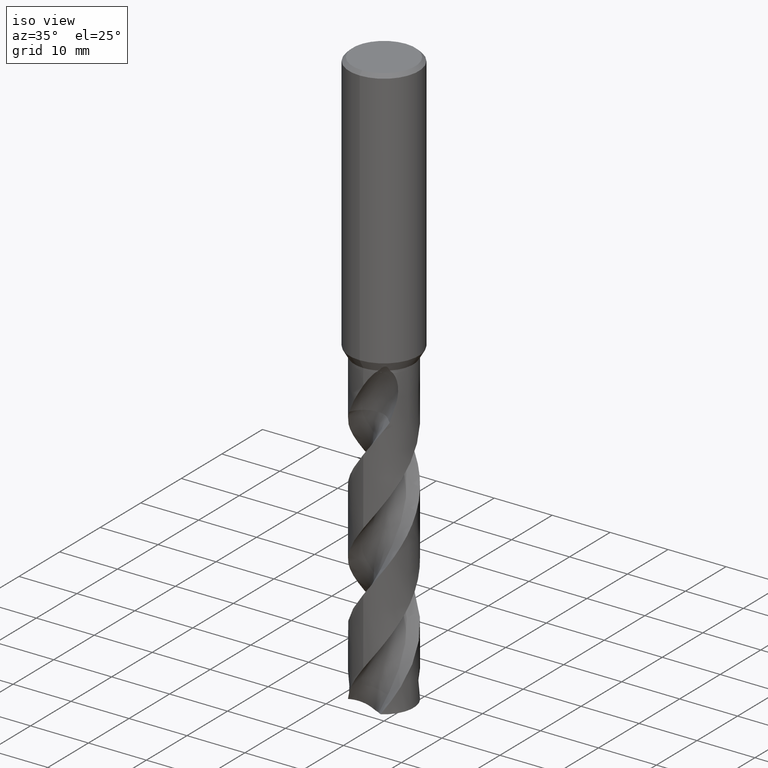
[diagram: clean part render]
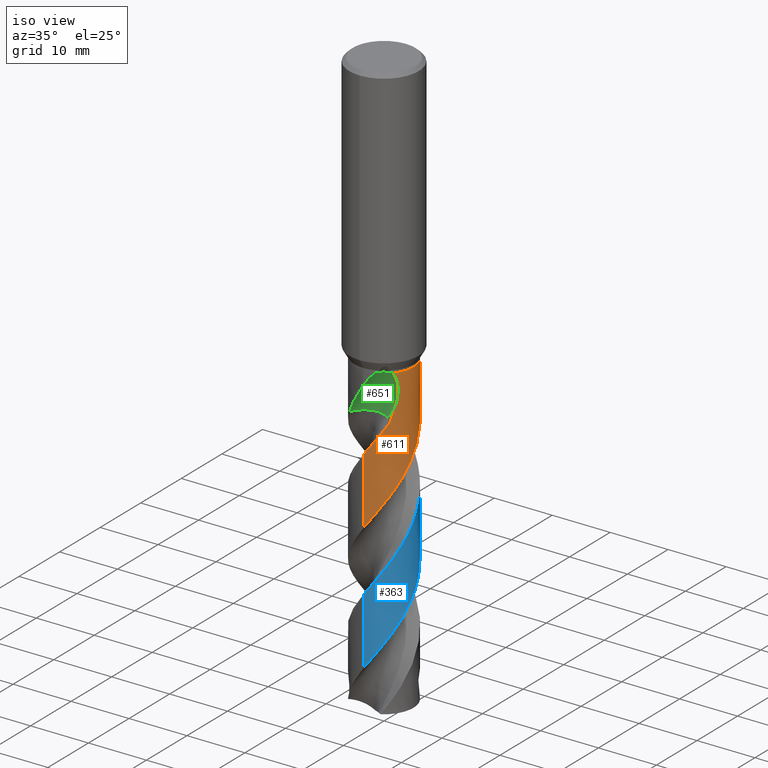
[diagram: same view with three faces highlighted in distinct colors, each labeled with its STEP entity id]
A machine part, iso view with three faces highlighted in distinct colors.
Their STEP definitions:

[orange] entity #611 — the highlighted conical surface has half-angle 0 deg.
#291=VERTEX_POINT('',#806);
#409=EDGE_CURVE('',#447,#733,#936,.T.);
#417=VERTEX_POINT('',#945);
#433=EDGE_CURVE('',#417,#473,#961,.T.);
#447=VERTEX_POINT('',#975);
#453=EDGE_CURVE('',#661,#565,#981,.T.);
#457=EDGE_CURVE('',#291,#661,#985,.T.);
#473=VERTEX_POINT('',#1003);
#493=EDGE_CURVE('',#417,#605,#1024,.T.);
#537=EDGE_CURVE('',#473,#291,#1072,.T.);
#565=VERTEX_POINT('',#1101);
#605=VERTEX_POINT('',#1145);
#611=ADVANCED_FACE('',(#1151),#1152,.T.);
#615=EDGE_CURVE('',#447,#565,#1156,.T.);
#661=VERTEX_POINT('',#1209);
#681=EDGE_CURVE('',#733,#605,#1231,.T.);
#733=VERTEX_POINT('',#1290);
#806=CARTESIAN_POINT('',(4.14948817813422,-2.96493210192964,-51.9236798045269));
#936=B_SPLINE_CURVE_WITH_KNOTS('',3,(#3297,#3298,#3299,#3300,#3301,#3302,#3303,#3304,#3305,#3306,#3307,#3308,#3309,#3310,#3311,#3312,#3313,#3314,#3315,#3316,#3317,#3318,#3319,#3320,#3321,#3322,#3323,#3324,#3325,#3326,#3327,#3328,#3329,#3330,#3331,#3332,#3333,#3334,#3335,#3336,#3337,#3338,#3339,#3340,#3341,#3342,#3343,#3344,#3345,#3346,#3347,#3348,#3349,#3350,#3351,#3352,#3353,#3354,#3355,#3356,#3357,#3358,#3359,#3360,#3361,#3362,#3363,#3364,#3365,#3366,#3367,#3368,#3369,#3370,#3371,#3372),.UNSPECIFIED.,.F.,.F.,(4,2,2,2,2,2,2,2,2,2,2,2,2,2,2,2,2,2,2,2,2,2,2,2,2,2,2,2,2,2,2,2,2,2,2,2,2,4),(0.0,2.2659182937515,4.75245531387169,5.3748516500906,8.0506284897172,9.19276919187222,12.0115479020644,13.1936776919368,15.7151134856049,16.3273034336714,18.9527638353742,21.2121991210266,23.2901118890067,23.6378338876585,26.1641420670405,27.5471307464008,30.3821290648293,31.4751814525203,34.3067888830194,35.0076361855475,37.8405188865984,38.9978491377905,40.5468056163044,41.2564744917496,42.313640971352,45.2837343647013,45.9897149979672,50.1686012888579,52.9904123525947,53.1700650287888,53.8436807658941,54.5831018689074,55.0248506861852,55.4934853003944,55.8849521085736,56.351828900714,57.2241566725933,59.1603088884066),.UNSPECIFIED.);
#945=CARTESIAN_POINT('',(-6.31360271403751E-016,5.0999,-47.0));
#961=CIRCLE('',#3511,5.0999);
#975=CARTESIAN_POINT('',(-4.00537581315732E-012,-5.09994624439276,-71.5760053127153));
#981=B_SPLINE_CURVE_WITH_KNOTS('',3,(#3783,#3784,#3785,#3786,#3787,#3788,#3789,#3790,#3791,#3792,#3793,#3794,#3795,#3796,#3797,#3798,#3799,#3800,#3801,#3802,#3803,#3804,#3805,#3806,#3807,#3808,#3809,#3810,#3811,#3812,#3813,#3814,#3815,#3816,#3817,#3818,#3819,#3820,#3821,#3822,#3823,#3824,#3825,#3826,#3827,#3828,#3829,#3830,#3831,#3832,#3833,#3834,#3835,#3836,#3837,#3838,#3839,#3840,#3841,#3842,#3843,#3844,#3845,#3846,#3847,#3848,#3849,#3850,#3851,#3852,#3853,#3854,#3855,#3856,#3857,#3858,#3859,#3860,#3861,#3862,#3863,#3864,#3865,#3866,#3867,#3868,#3869,#3870,#3871,#3872,#3873,#3874),.UNSPECIFIED.,.F.,.F.,(4,2,2,2,2,2,2,2,2,2,2,2,2,2,2,2,2,2,2,2,2,2,2,2,2,2,2,2,2,2,2,2,2,2,2,2,2,2,2,2,2,2,2,2,2,4),(0.0,0.22082402785822,0.366742601328672,0.519637852044823,1.02510263478225,1.2151682814487,1.34097674311764,1.46222188152734,1.62967037495746,1.81786979630084,1.83040576516735,2.51486615374321,2.95538347653831,3.38821230604994,3.84285838216551,5.07209421420267,6.2859535778628,8.00081098720895,10.8465937790254,11.1845590468723,12.9859172417455,15.8335697338612,18.2229667895168,18.6646038138347,20.4514708595499,23.2957169694726,25.5318611131493,25.9798471865577,27.7200175554721,30.567511120799,32.8493350048397,33.3034016768828,36.6889246840723,36.7954243586462,39.8640057025503,40.9398060508403,43.0401057963898,43.7440179144292,44.6946240081235,46.9389972404029,48.1097084278696,50.0187907029872,53.2114582337947,54.8089898868199,55.6105351541812,56.4125536006402),.UNSPECIFIED.);
#985=B_SPLINE_CURVE_WITH_KNOTS('',3,(#3881,#3882,#3883,#3884),.UNSPECIFIED.,.F.,.F.,(4,4),(0.0,2.93092913889182),.UNSPECIFIED.);
#1003=CARTESIAN_POINT('',(3.86434643755276,-3.32803344643248,-47.0));
#1024=LINE('',#4024,#4025);
#1072=B_SPLINE_CURVE_WITH_KNOTS('',3,(#4204,#4205,#4206,#4207,#4208,#4209,#4210,#4211,#4212,#4213),.UNSPECIFIED.,.F.,.F.,(4,2,2,2,4),(0.0,0.956613033133866,2.29409634646343,2.99939022102229,3.73564279157731),.UNSPECIFIED.);
#1101=CARTESIAN_POINT('',(6.91755758101175E-013,-5.09992459473952,-60.0705673244784));
#1145=CARTESIAN_POINT('',(-1.50822059244601E-012,5.09990431853075,-49.2950292607119));
#1151=FACE_OUTER_BOUND('',#4442,.T.);
#1152=CONICAL_SURFACE('',#4443,5.09995,1.88168875178633E-006);
#1156=LINE('',#4449,#4450);
#1209=CARTESIAN_POINT('',(3.54483399488666,-3.66650788281814,-54.7162));
#1231=B_SPLINE_CURVE_WITH_KNOTS('',3,(#4739,#4740,#4741,#4742,#4743,#4744,#4745,#4746,#4747,#4748,#4749,#4750,#4751,#4752),.UNSPECIFIED.,.F.,.F.,(4,2,2,2,2,2,4),(0.0,2.49872115833258,3.86307340073771,5.09882207220163,6.5344464686445,8.25894814408787,9.14539973170347),.UNSPECIFIED.);
#1290=CARTESIAN_POINT('',(3.24976651141065,3.93041292072291,-54.7162));
#3297=CARTESIAN_POINT('',(4.20163265179173,2.89072362210531,-100.143751805242));
#3298=CARTESIAN_POINT('',(3.94902573075824,3.25788277465556,-99.5339393736739));
#3299=CARTESIAN_POINT('',(3.64852755789272,3.59149373882036,-98.9244225806015));
#3300=CARTESIAN_POINT('',(2.9334930673307,4.20073081689364,-97.64729835411));
#3301=CARTESIAN_POINT('',(2.51608206940174,4.46302269706784,-96.9891642995706));
#3302=CARTESIAN_POINT('',(1.95704194696908,4.71114669856159,-96.151931823369));
#3303=CARTESIAN_POINT('',(1.84363074768749,4.75667169492251,-95.9838706976579));
#3304=CARTESIAN_POINT('',(1.23344196423027,4.97648381554069,-95.0955473189081));
#3305=CARTESIAN_POINT('',(0.713419821059293,5.07731121855019,-94.3881657299518));
#3306=CARTESIAN_POINT('',(-0.0386181567742661,5.10480749518826,-93.3624851050461));
#3307=CARTESIAN_POINT('',(-0.263403433796054,5.09812440041802,-93.0540809529159));
#3308=CARTESIAN_POINT('',(-1.03832877905273,5.02380704888565,-91.9903425695381));
#3309=CARTESIAN_POINT('',(-1.57710345166921,4.88149571805329,-91.2484423651491));
#3310=CARTESIAN_POINT('',(-2.29432757992744,4.5606757067121,-90.1747432469911));
#3311=CARTESIAN_POINT('',(-2.49980764268498,4.45140120076922,-89.8554986542758));
#3312=CARTESIAN_POINT('',(-3.11886650847182,4.06559677575408,-88.8607000973938));
#3313=CARTESIAN_POINT('',(-3.499236112779,3.74310224472208,-88.1943530662491));
#3314=CARTESIAN_POINT('',(-3.90643716109149,3.28085153629935,-87.3524036938161));
#3315=CARTESIAN_POINT('',(-3.98258275736734,3.18797459612671,-87.1874894338068));
#3316=CARTESIAN_POINT('',(-4.36736588062536,2.68339880478363,-86.3185729896093));
#3317=CARTESIAN_POINT('',(-4.61602857248328,2.22896791171575,-85.6262540376606));
#3318=CARTESIAN_POINT('',(-4.94436426038694,1.32671766670968,-84.318901738017));
#3319=CARTESIAN_POINT('',(-5.04114127762649,0.891285416729236,-83.7105359837499));
#3320=CARTESIAN_POINT('',(-5.11618026950976,0.0408034127511017,-82.5501239381891));
#3321=CARTESIAN_POINT('',(-5.1028887142046,-0.368455409023369,-81.9998499548103));
#3322=CARTESIAN_POINT('',(-5.03110469967854,-0.83801049480537,-81.3491802855775));
#3323=CARTESIAN_POINT('',(-5.01949044637446,-0.904980820476269,-81.2558366903674));
#3324=CARTESIAN_POINT('',(-4.91223650317283,-1.45750667118565,-80.4847011595226));
#3325=CARTESIAN_POINT('',(-4.74768377828999,-1.92763669747734,-79.8178206553223));
#3326=CARTESIAN_POINT('',(-4.39089842959843,-2.60835684062953,-78.7723402392275));
#3327=CARTESIAN_POINT('',(-4.24586969644453,-2.8381779416644,-78.4005221910267));
#3328=CARTESIAN_POINT('',(-3.75203048266137,-3.49841716249829,-77.2729161074051));
#3329=CARTESIAN_POINT('',(-3.35012832383167,-3.88502306744454,-76.5302785191477));
#3330=CARTESIAN_POINT('',(-2.71774441448674,-4.32077088010093,-75.4816332046191));
#3331=CARTESIAN_POINT('',(-2.53460527375539,-4.43068839033217,-75.1884231313961));
#3332=CARTESIAN_POINT('',(-1.85294906361646,-4.78359569897436,-74.1404111348516));
#3333=CARTESIAN_POINT('',(-1.3236341594009,-4.95609344505658,-73.3993754347419));
#3334=CARTESIAN_POINT('',(-0.642300352504602,-5.06118827557465,-72.455944516128));
#3335=CARTESIAN_POINT('',(-0.506453761667219,-5.07658970697857,-72.2682187085541));
#3336=CARTESIAN_POINT('',(0.182943306980712,-5.12669822153022,-71.3232176836819));
#3337=CARTESIAN_POINT('',(0.738197648170805,-5.0765530168807,-70.5808189748717));
#3338=CARTESIAN_POINT('',(1.49373449728963,-4.88153562684583,-69.5148868957905));
#3339=CARTESIAN_POINT('',(1.70896384621616,-4.81043478259578,-69.2039005024451));
#3340=CARTESIAN_POINT('',(2.20030904389421,-4.61087467471652,-68.4804840568033));
#3341=CARTESIAN_POINT('',(2.47110678147556,-4.47164694376927,-68.0691386686152));
#3342=CARTESIAN_POINT('',(2.84602047578238,-4.23426264977135,-67.4664030980578));
#3343=CARTESIAN_POINT('',(2.96057595307478,-4.154962020033,-67.2771674823594));
#3344=CARTESIAN_POINT('',(3.2370392159696,-3.9463751788018,-66.805081844377));
#3345=CARTESIAN_POINT('',(3.39429397239863,-3.81190845645427,-66.5212192443903));
#3346=CARTESIAN_POINT('',(3.95938749429517,-3.26622523698176,-65.4460881168611));
#3347=CARTESIAN_POINT('',(4.3046080709117,-2.79571526442765,-64.6702787971425));
#3348=CARTESIAN_POINT('',(4.6250599107829,-2.15339850465486,-63.6909053874304));
#3349=CARTESIAN_POINT('',(4.68146920675425,-2.02782437002429,-63.5022967652639));
#3350=CARTESIAN_POINT('',(5.03615411743812,-1.14439833047024,-62.2013281968214));
#3351=CARTESIAN_POINT('',(5.15455294521646,-0.32549740910339,-61.1082827952683));
#3352=CARTESIAN_POINT('',(5.02400472889591,1.03552807950939,-59.2462388978145));
#3353=CARTESIAN_POINT('',(4.88246903167541,1.57781612948606,-58.475755101576));
#3354=CARTESIAN_POINT('',(4.63602441696222,2.12550108241176,-57.6813557804776));
#3355=CARTESIAN_POINT('',(4.62120907965544,2.15753111051058,-57.6348489595028));
#3356=CARTESIAN_POINT('',(4.54682023135637,2.31393609483181,-57.4053239112771));
#3357=CARTESIAN_POINT('',(4.48392631597266,2.43336282846503,-57.2240568969636));
#3358=CARTESIAN_POINT('',(4.34456891073445,2.67491778743777,-56.8384374460681));
#3359=CARTESIAN_POINT('',(4.26812728607562,2.79487914519493,-56.6355977998295));
#3360=CARTESIAN_POINT('',(4.14224287698357,2.97620528129077,-56.3046187507262));
#3361=CARTESIAN_POINT('',(4.10898713181421,3.02104949025919,-56.2168157989445));
#3362=CARTESIAN_POINT('',(4.06355335732812,3.08191783173938,-56.1000897947353));
#3363=CARTESIAN_POINT('',(4.03935520272679,3.11358685982075,-56.040625768353));
#3364=CARTESIAN_POINT('',(3.99323117831625,3.17244614924502,-55.9323936095053));
#3365=CARTESIAN_POINT('',(3.97162862034546,3.19946174399677,-55.8835743391281));
#3366=CARTESIAN_POINT('',(3.92280018506146,3.25922525695577,-55.7773780842053));
#3367=CARTESIAN_POINT('',(3.89534166978667,3.29201505340315,-55.7202708134894));
#3368=CARTESIAN_POINT('',(3.81376922654446,3.38687911099502,-55.5581194381631));
#3369=CARTESIAN_POINT('',(3.75745111862449,3.44938670569744,-55.4549814250876));
#3370=CARTESIAN_POINT('',(3.56458688078228,3.65241359686789,-55.1294365223203));
#3371=CARTESIAN_POINT('',(3.41603735137069,3.79293640698324,-54.9185276917459));
#3372=CARTESIAN_POINT('',(3.24976651141065,3.93041292072291,-54.7162));
#3511=AXIS2_PLACEMENT_3D('',#5488,#5489,#5490);
#3783=CARTESIAN_POINT('',(3.54483399488667,-3.66650788281814,-54.7162));
#3784=CARTESIAN_POINT('',(3.51492533426622,-3.6954241767514,-54.7769244513859));
#3785=CARTESIAN_POINT('',(3.4845799002416,-3.72405618101534,-54.8375821625741));
#3786=CARTESIAN_POINT('',(3.43329860129553,-3.7712547049605,-54.938177951918));
#3787=CARTESIAN_POINT('',(3.41269053106124,-3.78991512335172,-54.9781117520438));
#3788=CARTESIAN_POINT('',(3.36997618180811,-3.82795660785222,-55.0598033292017));
#3789=CARTESIAN_POINT('',(3.34788769672817,-3.84729186287019,-55.1014761624427));
#3790=CARTESIAN_POINT('',(3.2515295078198,-3.93016749254595,-55.2807180358993));
#3791=CARTESIAN_POINT('',(3.17569796849079,-3.9917528920058,-55.4153248073159));
#3792=CARTESIAN_POINT('',(3.06631758057516,-4.07532287497266,-55.6015377705761));
#3793=CARTESIAN_POINT('',(3.03609048636148,-4.09789410866181,-55.6522264851778));
#3794=CARTESIAN_POINT('',(2.98521972985275,-4.13500178950696,-55.7364248432783));
#3795=CARTESIAN_POINT('',(2.96481959237899,-4.14965376119839,-55.7699018490594));
#3796=CARTESIAN_POINT('',(2.9244712543898,-4.17818209193084,-55.835621425538));
#3797=CARTESIAN_POINT('',(2.90455226612263,-4.1920540053856,-55.8678341910824));
#3798=CARTESIAN_POINT('',(2.85683826708099,-4.22477845389328,-55.9445350897757));
#3799=CARTESIAN_POINT('',(2.82897048830673,-4.24348976331606,-55.9889649662494));
#3800=CARTESIAN_POINT('',(2.76938832392624,-4.2826470920751,-56.0834089064715));
#3801=CARTESIAN_POINT('',(2.73767817970695,-4.30298593101078,-56.1333488283473));
#3802=CARTESIAN_POINT('',(2.70367557433654,-4.32426883927627,-56.1867346095765));
#3803=CARTESIAN_POINT('',(2.7015657322926,-4.32558727877578,-56.190046632859));
#3804=CARTESIAN_POINT('',(2.58298823065443,-4.39956460512413,-56.3761857668626));
#3805=CARTESIAN_POINT('',(2.46452080271372,-4.46693672490528,-56.561477953033));
#3806=CARTESIAN_POINT('',(2.26748572479871,-4.56894146692081,-56.865219431682));
#3807=CARTESIAN_POINT('',(2.18940313148241,-4.60686479957766,-56.9845016590216));
#3808=CARTESIAN_POINT('',(2.0329164560707,-4.67800004717565,-57.2206912373843));
#3809=CARTESIAN_POINT('',(1.95438458329192,-4.71135408251928,-57.3378427288637));
#3810=CARTESIAN_POINT('',(1.79148936571227,-4.77575136621021,-57.5775785787686));
#3811=CARTESIAN_POINT('',(1.70747977829738,-4.80642882392459,-57.6993169062508));
#3812=CARTESIAN_POINT('',(1.39224514017974,-4.91220581894484,-58.1514955849901));
#3813=CARTESIAN_POINT('',(1.1569614193407,-4.97287708774679,-58.4799844828475));
#3814=CARTESIAN_POINT('',(0.682632285639242,-5.05970636710842,-59.1362348757954));
#3815=CARTESIAN_POINT('',(0.444571249921775,-5.08612434503415,-59.4632586020475));
#3816=CARTESIAN_POINT('',(-0.131421230992353,-5.10939273180395,-60.250467147338));
#3817=CARTESIAN_POINT('',(-0.469385835797548,-5.08951808567232,-60.7085898942239));
#3818=CARTESIAN_POINT('',(-1.35719180189964,-4.9479285052593,-61.933062885012));
#3819=CARTESIAN_POINT('',(-1.89279593728081,-4.76877995448596,-62.6932515508236));
#3820=CARTESIAN_POINT('',(-2.44728242474447,-4.47487924548683,-63.5480718219834));
#3821=CARTESIAN_POINT('',(-2.50550827589929,-4.44254014216164,-63.638772383608));
#3822=CARTESIAN_POINT('',(-2.86996684859121,-4.23067400552803,-64.2133994826588));
#3823=CARTESIAN_POINT('',(-3.15746802583165,-4.0206721183433,-64.6969974916377));
#3824=CARTESIAN_POINT('',(-3.837162146945,-3.40597006275892,-65.9457832407978));
#3825=CARTESIAN_POINT('',(-4.18830132045087,-2.96344328325981,-66.7039431746317));
#3826=CARTESIAN_POINT('',(-4.68841832265861,-2.06144276053782,-68.1113942027327));
#3827=CARTESIAN_POINT('',(-4.85870523499638,-1.62001468005438,-68.7494307972835));
#3828=CARTESIAN_POINT('',(-4.98582909174566,-1.07633950791332,-69.50954670241));
#3829=CARTESIAN_POINT('',(-5.00347392005237,-0.991078809526539,-69.62809551533));
#3830=CARTESIAN_POINT('',(-5.08144112288314,-0.558902858053204,-70.2267847914549));
#3831=CARTESIAN_POINT('',(-5.10791502607372,-0.206722682405034,-70.7065480612008));
#3832=CARTESIAN_POINT('',(-5.08188664842853,0.705905846368512,-71.9506887326361));
#3833=CARTESIAN_POINT('',(-4.973569544721,1.25975542630322,-72.7083751831679));
#3834=CARTESIAN_POINT('',(-4.62338100028732,2.19724257350912,-74.0737831396042));
#3835=CARTESIAN_POINT('',(-4.41633963061922,2.58843400526252,-74.671281491314));
#3836=CARTESIAN_POINT('',(-4.11027703042872,3.02042305854668,-75.3920480171081));
#3837=CARTESIAN_POINT('',(-4.05735669390024,3.09114544574352,-75.5123035180685));
#3838=CARTESIAN_POINT('',(-3.79009448450189,3.4296295043456,-76.1002453683056));
#3839=CARTESIAN_POINT('',(-3.5508787928307,3.6767535883773,-76.5676418387987));
#3840=CARTESIAN_POINT('',(-2.8595585337532,4.26000854484495,-77.8003795929029));
#3841=CARTESIAN_POINT('',(-2.37375767697457,4.54857859305012,-78.558737098844));
#3842=CARTESIAN_POINT('',(-1.43213581892212,4.91535241165453,-79.9375409301634));
#3843=CARTESIAN_POINT('',(-0.993233813087876,5.02252427613478,-80.5473273360303));
#3844=CARTESIAN_POINT('',(-0.456599403015162,5.08027352877978,-81.2821109404341));
#3845=CARTESIAN_POINT('',(-0.367344360683626,5.0875054360707,-81.4040086363231));
#3846=CARTESIAN_POINT('',(0.388478207430761,5.12876300632644,-82.4358521771697));
#3847=CARTESIAN_POINT('',(1.05612962351583,5.03393524125581,-83.3381235876571));
#3848=CARTESIAN_POINT('',(1.70638628164751,4.80607770353604,-84.2763378775172));
#3849=CARTESIAN_POINT('',(1.72616998206657,4.79900767382752,-84.3049479626311));
#3850=CARTESIAN_POINT('',(2.31472038735596,4.58456937426615,-85.1582384638583));
#3851=CARTESIAN_POINT('',(2.84255823774471,4.27746676212991,-85.9793755628883));
#3852=CARTESIAN_POINT('',(3.4659300708769,3.7472926808958,-87.0932833622439));
#3853=CARTESIAN_POINT('',(3.61886842476091,3.59979946059456,-87.3820007032516));
#3854=CARTESIAN_POINT('',(4.04175479514962,3.13776125139833,-88.2363995391575));
#3855=CARTESIAN_POINT('',(4.28334069293777,2.79906733943415,-88.7999801009879));
#3856=CARTESIAN_POINT('',(4.54768313161023,2.31250838832456,-89.5539189784984));
#3857=CARTESIAN_POINT('',(4.60902244707034,2.18770170237364,-89.743025292661));
#3858=CARTESIAN_POINT('',(4.74104287977803,1.88880055778054,-90.187815997139));
#3859=CARTESIAN_POINT('',(4.80729555155234,1.71314581782827,-90.4432106620483));
#3860=CARTESIAN_POINT('',(4.99686285393043,1.11225075851984,-91.302857835853));
#3861=CARTESIAN_POINT('',(5.07461295412415,0.674259898385694,-91.9046591441237));
#3862=CARTESIAN_POINT('',(5.10522471887703,0.000478399569474847,-92.8229026873463));
#3863=CARTESIAN_POINT('',(5.09999565033292,-0.230811494304414,-93.1369449523894));
#3864=CARTESIAN_POINT('',(5.04507999672973,-0.836035019957271,-93.965587441613));
#3865=CARTESIAN_POINT('',(4.96955517390479,-1.20647038292756,-94.4785292324855));
#3866=CARTESIAN_POINT('',(4.66030620300535,-2.1654211063936,-95.8507955468777));
#3867=CARTESIAN_POINT('',(4.3572256279583,-2.72419440945799,-96.7027351494243));
#3868=CARTESIAN_POINT('',(3.76180904208304,-3.45804560915037,-97.9920005224473));
#3869=CARTESIAN_POINT('',(3.54084088053239,-3.68402386974543,-98.4205395963364));
#3870=CARTESIAN_POINT('',(3.17947182715234,-3.99074136009653,-99.065684627592));
#3871=CARTESIAN_POINT('',(3.05404928068615,-4.08752104768689,-99.2811321727547));
#3872=CARTESIAN_POINT('',(2.79457555682673,-4.26912528017815,-99.7124330432565));
#3873=CARTESIAN_POINT('',(2.66064028112371,-4.35385801980733,-99.9280352812336));
#3874=CARTESIAN_POINT('',(2.52298112860558,-4.43221910838127,-100.143751805242));
#3881=CARTESIAN_POINT('',(4.14948817818684,-2.964932101856,-51.9236798045559));
#3882=CARTESIAN_POINT('',(3.98507442511856,-3.19503581936171,-52.8588285859528));
#3883=CARTESIAN_POINT('',(3.78691296481268,-3.43245995870815,-53.7995418619512));
#3884=CARTESIAN_POINT('',(3.54483399488666,-3.66650788281815,-54.7162));
#4024=CARTESIAN_POINT('',(-6.3136639443552E-016,5.09995,-73.5718759026212));
#4025=VECTOR('',#5528,1.0);
#4204=CARTESIAN_POINT('',(3.86434643755276,-3.32803344643249,-47.0));
#4205=CARTESIAN_POINT('',(3.99035627151438,-3.181717844244,-47.2537557644386));
#4206=CARTESIAN_POINT('',(4.0896527958812,-3.04963820249648,-47.5691350157602));
#4207=CARTESIAN_POINT('',(4.26784836530952,-2.7976514970042,-48.4373537955779));
#4208=CARTESIAN_POINT('',(4.32692432977883,-2.69940573817909,-49.0510601715517));
#4209=CARTESIAN_POINT('',(4.33240437159778,-2.69059931547266,-50.0991112318));
#4210=CARTESIAN_POINT('',(4.31857142792948,-2.71327046204746,-50.4610470489588));
#4211=CARTESIAN_POINT('',(4.25956749588456,-2.80504014511745,-51.1934643086016));
#4212=CARTESIAN_POINT('',(4.21317925601455,-2.87579385458063,-51.5614249426823));
#4213=CARTESIAN_POINT('',(4.14948817813421,-2.96493210192964,-51.9236798045269));
#4442=EDGE_LOOP('',(#5654,#5655,#5656,#5657,#5658,#5659,#5660,#5661));
#4443=AXIS2_PLACEMENT_3D('',#5662,#5663,#5664);
#4449=CARTESIAN_POINT('',(6.17719840399767E-016,-5.09995,-73.5718759026212));
#4450=VECTOR('',#5668,1.0);
#4739=CARTESIAN_POINT('',(3.24976651141065,3.93041292072291,-54.7162));
#4740=CARTESIAN_POINT('',(2.91335754670991,4.20856277477289,-54.0068370282236));
#4741=CARTESIAN_POINT('',(2.52656084275386,4.45582076374709,-53.3454817741846));
#4742=CARTESIAN_POINT('',(1.85210085701279,4.75888653671199,-52.2406486507469));
#4743=CARTESIAN_POINT('',(1.60939851596232,4.84606701674677,-51.8519328156349));
#4744=CARTESIAN_POINT('',(1.13955848368549,4.97636041394906,-51.0994845990313));
#4745=CARTESIAN_POINT('',(0.914518422784485,5.02239262849197,-50.7392588890588));
#4746=CARTESIAN_POINT('',(0.427403815596067,5.08882762791527,-49.9628833852051));
#4747=CARTESIAN_POINT('',(0.161259963986772,5.10442457564482,-49.5406562203466));
#4748=CARTESIAN_POINT('',(-0.429776382696007,5.09199144791901,-48.6373771091695));
#4749=CARTESIAN_POINT('',(-0.780200371234543,5.053538535443,-48.1234042208602));
#4750=CARTESIAN_POINT('',(-1.32827713525057,4.92758786750428,-47.4360199193473));
#4751=CARTESIAN_POINT('',(-1.52883937982554,4.8704006693747,-47.2043644475746));
#4752=CARTESIAN_POINT('',(-1.73731639661872,4.79486305831978,-47.0));
#5488=CARTESIAN_POINT('',(0.0,0.0,-47.0));
#5489=DIRECTION('',(0.0,0.0,-1.0));
#5490=DIRECTION('',(0.0,1.0,0.0));
#5528=DIRECTION('',(-2.30432800135228E-022,1.88168875178522E-006,-0.99999999999823));
#5654=ORIENTED_EDGE('',*,*,#493,.F.);
#5655=ORIENTED_EDGE('',*,*,#433,.T.);
#5656=ORIENTED_EDGE('',*,*,#537,.T.);
#5657=ORIENTED_EDGE('',*,*,#457,.T.);
#5658=ORIENTED_EDGE('',*,*,#453,.T.);
#5659=ORIENTED_EDGE('',*,*,#615,.F.);
#5660=ORIENTED_EDGE('',*,*,#409,.T.);
#5661=ORIENTED_EDGE('',*,*,#681,.T.);
#5662=CARTESIAN_POINT('',(0.0,0.0,-73.5718759026212));
#5663=DIRECTION('',(0.0,-0.0,-1.0));
#5664=DIRECTION('',(0.0,1.0,0.0));
#5668=DIRECTION('',(-2.30432800135228E-022,1.88168875178522E-006,0.99999999999823));

[blue] entity #363 — the highlighted conical surface has half-angle 0 deg.
#363=ADVANCED_FACE('',(#886),#887,.T.);
#393=EDGE_CURVE('',#435,#551,#919,.T.);
#435=VERTEX_POINT('',#963);
#487=EDGE_CURVE('',#435,#739,#1018,.T.);
#551=VERTEX_POINT('',#1087);
#695=VERTEX_POINT('',#1248);
#739=VERTEX_POINT('',#1296);
#751=EDGE_CURVE('',#695,#739,#1310,.T.);
#771=EDGE_CURVE('',#695,#551,#1332,.T.);
#886=FACE_OUTER_BOUND('',#3034,.T.);
#887=CONICAL_SURFACE('',#3035,5.09995,1.88168875178633E-006);
#919=B_SPLINE_CURVE_WITH_KNOTS('',3,(#3120,#3121,#3122,#3123,#3124,#3125,#3126,#3127,#3128,#3129,#3130,#3131,#3132,#3133,#3134,#3135,#3136,#3137,#3138,#3139,#3140,#3141,#3142,#3143,#3144,#3145,#3146,#3147,#3148,#3149,#3150,#3151,#3152,#3153,#3154,#3155,#3156,#3157,#3158,#3159,#3160,#3161,#3162,#3163,#3164,#3165,#3166,#3167,#3168,#3169,#3170,#3171,#3172,#3173,#3174,#3175,#3176,#3177,#3178,#3179,#3180,#3181,#3182,#3183,#3184,#3185,#3186,#3187,#3188,#3189,#3190,#3191,#3192,#3193,#3194,#3195,#3196,#3197),.UNSPECIFIED.,.F.,.F.,(4,2,2,2,2,2,2,2,2,2,2,2,2,2,2,2,2,2,2,2,2,2,2,2,2,2,2,2,2,2,2,2,2,2,2,2,2,2,4),(0.0,2.26591834238043,4.75245560777625,5.37485233014804,8.0506303341988,9.19278370230962,12.0115618256693,13.1937105294441,15.7156891345217,16.3283264190488,18.9554236594136,21.2100177283507,23.2909805826317,23.6385445369638,26.165923040927,27.543861704137,30.378805607455,31.4620597053915,34.2939686486579,34.9794848804535,37.8144065928469,38.9446296965847,41.7731624896859,42.1235409111548,44.5287580583477,45.2655472885215,45.9719978200671,50.4329579470356,51.9267864510947,53.0302101485412,53.2156108229133,53.9011258477095,54.6508997926238,55.1148626765171,55.6688525888441,56.1279843150173,56.671307147104,57.6738302912634,59.979403547771),.UNSPECIFIED.);
#963=CARTESIAN_POINT('',(-1.41528039503262E-011,-5.09998733846747,-93.4149383870123));
#1018=LINE('',#4016,#4017);
#1087=CARTESIAN_POINT('',(4.34199891633546E-012,5.09994624439276,-71.5760053127162));
#1248=CARTESIAN_POINT('',(-6.75765064434781E-013,5.09992459473952,-60.0705673244784));
#1296=CARTESIAN_POINT('',(1.36738259375526E-011,-5.09996568097991,-81.9053369442979));
#1310=B_SPLINE_CURVE_WITH_KNOTS('',3,(#5145,#5146,#5147,#5148,#5149,#5150,#5151,#5152,#5153,#5154,#5155,#5156,#5157,#5158,#5159,#5160,#5161,#5162,#5163,#5164,#5165,#5166,#5167,#5168,#5169,#5170,#5171,#5172,#5173,#5174,#5175,#5176,#5177,#5178,#5179,#5180,#5181,#5182,#5183,#5184,#5185,#5186,#5187,#5188,#5189,#5190,#5191,#5192,#5193,#5194,#5195,#5196,#5197,#5198,#5199,#5200,#5201,#5202,#5203,#5204,#5205,#5206,#5207,#5208,#5209,#5210,#5211,#5212,#5213,#5214,#5215,#5216,#5217,#5218,#5219,#5220,#5221,#5222,#5223,#5224,#5225,#5226,#5227,#5228,#5229,#5230,#5231,#5232,#5233,#5234,#5235,#5236),.UNSPECIFIED.,.F.,.F.,(4,2,2,2,2,2,2,2,2,2,2,2,2,2,2,2,2,2,2,2,2,2,2,2,2,2,2,2,2,2,2,2,2,2,2,2,2,2,2,2,2,2,2,2,2,4),(0.0,0.220824028284294,0.366742602779952,0.519637850488109,1.02510263435499,1.21516828114332,1.34097674291307,1.46222188128358,1.62967037459784,1.81786979584962,1.83040576460696,2.51486614759537,2.95538346659302,3.38821229229305,3.84285836349934,5.07209418482097,6.28595354020275,8.00081109497665,10.8465938630064,11.1845590854789,12.9859174281503,15.8335698837423,18.2229670668505,18.6646040093334,20.4514714111342,23.2957174612667,25.5318607486522,25.9798468533267,27.7200170695083,30.5675106217468,32.8493351331347,33.3034017159986,36.6889254168788,36.7954250473692,39.8640078860854,40.9398066054374,43.0401077391979,43.7440198305365,44.6946248885504,46.9390002699236,48.109710903742,50.018796850847,53.2114609109645,54.8089911098023,55.6105356320385,56.4125533420112),.UNSPECIFIED.);
#1332=LINE('',#5312,#5313);
#3034=EDGE_LOOP('',(#5437,#5438,#5439,#5440));
#3035=AXIS2_PLACEMENT_3D('',#5441,#5442,#5443);
#3120=CARTESIAN_POINT('',(-4.20163265179173,-2.89072362210532,-100.143751805242));
#3121=CARTESIAN_POINT('',(-3.94902572533704,-3.25788278253518,-99.5339393605867));
#3122=CARTESIAN_POINT('',(-3.64852754501558,-3.59149375311011,-98.9244225545155));
#3123=CARTESIAN_POINT('',(-2.93349300667749,-4.20073086493157,-97.6472982491638));
#3124=CARTESIAN_POINT('',(-2.51608196231804,-4.46302276260509,-96.9891641315868));
#3125=CARTESIAN_POINT('',(-1.95704171925714,-4.71114679512125,-96.1519314842473));
#3126=CARTESIAN_POINT('',(-1.84363044657695,-4.75667181363584,-95.9838702535773));
#3127=CARTESIAN_POINT('',(-1.2334413485954,-4.97648399328102,-95.0955464472417));
#3128=CARTESIAN_POINT('',(-0.713418955830856,-5.07731136417735,-94.3881645540973));
#3129=CARTESIAN_POINT('',(0.0386217551249576,-5.10480757809472,-93.3624801955763));
#3130=CARTESIAN_POINT('',(0.263409528476437,-5.09812419676162,-93.0540726023764));
#3131=CARTESIAN_POINT('',(1.03833724033697,-5.02380529750867,-91.990330916212));
#3132=CARTESIAN_POINT('',(1.57711161140702,-4.88149306948697,-91.248430817337));
#3133=CARTESIAN_POINT('',(2.29433850403111,-4.56067040031449,-90.1747266134477));
#3134=CARTESIAN_POINT('',(2.49982167689347,-4.45139352046916,-89.8554767992777));
#3135=CARTESIAN_POINT('',(3.11897325361795,-4.0655279767027,-88.8605270752134));
#3136=CARTESIAN_POINT('',(3.49941357979301,-3.74295023543946,-88.1940407664006));
#3137=CARTESIAN_POINT('',(3.90671137817522,-3.28052821459846,-87.3518234126544));
#3138=CARTESIAN_POINT('',(3.98290391942249,-3.18757674470061,-87.1867881655177));
#3139=CARTESIAN_POINT('',(4.36788395432929,-2.68261923300909,-86.3172999312178));
#3140=CARTESIAN_POINT('',(4.61660861822341,-2.22784144479321,-85.6245549852903));
#3141=CARTESIAN_POINT('',(4.94445105363377,-1.32607664476554,-84.3180304322552));
#3142=CARTESIAN_POINT('',(5.04100663202076,-0.891575898671172,-83.7109498019114));
#3143=CARTESIAN_POINT('',(5.11622371898019,-0.0414480505669255,-82.5509874065057));
#3144=CARTESIAN_POINT('',(5.10293915529296,0.368423673388999,-81.9999096740392));
#3145=CARTESIAN_POINT('',(5.03101645832871,0.838537652437403,-81.348447153096));
#3146=CARTESIAN_POINT('',(5.01940034313806,0.905478457643178,-81.2551432198687));
#3147=CARTESIAN_POINT('',(4.91205294731032,1.45820795083772,-80.4837146806834));
#3148=CARTESIAN_POINT('',(4.7473410849553,1.92854206217835,-79.8165206947947));
#3149=CARTESIAN_POINT('',(4.39073850428466,2.6085243605728,-78.7720334232022));
#3150=CARTESIAN_POINT('',(4.24624417280758,2.83752459932107,-78.4015530945609));
#3151=CARTESIAN_POINT('',(3.75321003234474,3.49715280268715,-77.2752493666781));
#3152=CARTESIAN_POINT('',(3.35142823086969,3.88390516906029,-76.532586024082));
#3153=CARTESIAN_POINT('',(2.72073452510562,4.31879496255536,-75.4865337889946));
#3154=CARTESIAN_POINT('',(2.53933683163808,4.42788529105525,-75.1959470070074));
#3155=CARTESIAN_POINT('',(1.85990598126542,4.78089602998139,-74.1504707097097));
#3156=CARTESIAN_POINT('',(1.33080356254379,4.95418257448639,-73.4093670477681));
#3157=CARTESIAN_POINT('',(0.652487609443686,5.05980521637121,-72.4700355941722));
#3158=CARTESIAN_POINT('',(0.519686500674695,5.07516989866271,-72.2864463430142));
#3159=CARTESIAN_POINT('',(-0.166532690125561,5.12726394620648,-71.3453722187739));
#3160=CARTESIAN_POINT('',(-0.722077835894489,5.07889488245205,-70.6027446700811));
#3161=CARTESIAN_POINT('',(-1.47322817590733,4.88751769258836,-69.5441270587613));
#3162=CARTESIAN_POINT('',(-1.68333279303794,4.81920480952527,-69.2409278336692));
#3163=CARTESIAN_POINT('',(-2.40307652878224,4.53223046738,-68.183550651657));
#3164=CARTESIAN_POINT('',(-2.87960765257456,4.24521546172928,-67.4431819241968));
#3165=CARTESIAN_POINT('',(-3.3525007234666,3.84379620102487,-66.5934768986168));
#3166=CARTESIAN_POINT('',(-3.40360715918659,3.79861431959149,-66.499758501317));
#3167=CARTESIAN_POINT('',(-3.79854476687139,3.43509904286943,-65.7638594587731));
#3168=CARTESIAN_POINT('',(-4.09872079002442,3.07110899416984,-65.1306582520719));
#3169=CARTESIAN_POINT('',(-4.42085052077321,2.54680480758957,-64.2948906637313));
#3170=CARTESIAN_POINT('',(-4.49103179797305,2.42087755443375,-64.0990464922585));
#3171=CARTESIAN_POINT('',(-4.61772714447269,2.16908580492785,-63.7145687353633));
#3172=CARTESIAN_POINT('',(-4.67460136296895,2.04360899597501,-63.5258460036861));
#3173=CARTESIAN_POINT('',(-5.0527900623559,1.11073878985949,-62.1499695789784));
#3174=CARTESIAN_POINT('',(-5.16817363352731,0.234497435838765,-60.9886919908196));
#3175=CARTESIAN_POINT('',(-5.02522153022204,-0.917122925147589,-59.406040480063));
#3176=CARTESIAN_POINT('',(-4.96498394206944,-1.20105291824848,-59.0054462907189));
#3177=CARTESIAN_POINT('',(-4.81850802548581,-1.68440436137468,-58.3174987282625));
#3178=CARTESIAN_POINT('',(-4.74284657945017,-1.88743170908291,-58.0265955593694));
#3179=CARTESIAN_POINT('',(-4.63834742732702,-2.12044047138486,-57.6887069478108));
#3180=CARTESIAN_POINT('',(-4.62312345550495,-2.15343545301084,-57.6408262008076));
#3181=CARTESIAN_POINT('',(-4.54855286307285,-2.31053742853706,-57.4104261358652));
#3182=CARTESIAN_POINT('',(-4.48567218290093,-2.43015223629582,-57.2290157996526));
#3183=CARTESIAN_POINT('',(-4.34656584123468,-2.67165310359197,-56.8438268044763));
#3184=CARTESIAN_POINT('',(-4.27038321151459,-2.79141771096182,-56.6415695982086));
#3185=CARTESIAN_POINT('',(-4.14322134624756,-2.97492165086389,-56.3071673619567));
#3186=CARTESIAN_POINT('',(-4.10849178625974,-3.02167822529162,-56.2156688584818));
#3187=CARTESIAN_POINT('',(-4.06525407222417,-3.07967759460716,-56.1043214342863));
#3188=CARTESIAN_POINT('',(-4.04090191290617,-3.11158313958714,-56.0443567908729));
#3189=CARTESIAN_POINT('',(-3.99463429148146,-3.17067899314773,-55.9356068033497));
#3190=CARTESIAN_POINT('',(-3.97305733659988,-3.19768718005604,-55.8867642548694));
#3191=CARTESIAN_POINT('',(-3.92449165341427,-3.25718383215582,-55.780964771009));
#3192=CARTESIAN_POINT('',(-3.89728426343374,-3.28971011462722,-55.7242672914885));
#3193=CARTESIAN_POINT('',(-3.81713256269147,-3.38304736263301,-55.5645706181588));
#3194=CARTESIAN_POINT('',(-3.76209411092742,-3.44427438500448,-55.4633820079205));
#3195=CARTESIAN_POINT('',(-3.56912862723457,-3.64811268732069,-55.1358985076593));
#3196=CARTESIAN_POINT('',(-3.41859396582541,-3.79082253997989,-54.921638723731));
#3197=CARTESIAN_POINT('',(-3.24976651141065,-3.93041292072291,-54.7162));
#4016=CARTESIAN_POINT('',(6.38330618019034E-016,-5.09995,-73.5718759026212));
#4017=VECTOR('',#5527,1.0);
#5145=CARTESIAN_POINT('',(-3.54483399488667,3.66650788281814,-54.7162));
#5146=CARTESIAN_POINT('',(-3.51492533420851,3.69542417680719,-54.776924451503));
#5147=CARTESIAN_POINT('',(-3.48457990013717,3.7240561811136,-54.8375821627824));
#5148=CARTESIAN_POINT('',(-3.43329860103059,3.77125470520299,-54.9381779524356));
#5149=CARTESIAN_POINT('',(-3.41269053066168,3.78991512371255,-54.9781117528164));
#5150=CARTESIAN_POINT('',(-3.36997618177102,3.82795660788002,-55.0598033292638));
#5151=CARTESIAN_POINT('',(-3.34788769710825,3.84729186253493,-55.1014761617212));
#5152=CARTESIAN_POINT('',(-3.25152950853424,3.93016749195928,-55.2807180346184));
#5153=CARTESIAN_POINT('',(-3.17569796899829,3.99175289161102,-55.4153248064416));
#5154=CARTESIAN_POINT('',(-3.06631758074294,4.0753228748471,-55.6015377702943));
#5155=CARTESIAN_POINT('',(-3.03609048647566,4.09789410857715,-55.6522264849871));
#5156=CARTESIAN_POINT('',(-2.98521972998053,4.13500178941473,-55.736424843068));
#5157=CARTESIAN_POINT('',(-2.96481959250639,4.14965376110755,-55.7699018488511));
#5158=CARTESIAN_POINT('',(-2.92447125449114,4.17818209185992,-55.8356214253738));
#5159=CARTESIAN_POINT('',(-2.90455226622624,4.19205400531372,-55.8678341909151));
#5160=CARTESIAN_POINT('',(-2.85683826723013,4.22477845379215,-55.9445350895371));
#5161=CARTESIAN_POINT('',(-2.82897048848403,4.24348976319765,-55.9889649659671));
#5162=CARTESIAN_POINT('',(-2.76938832414798,4.28264709193151,-56.0834089061214));
#5163=CARTESIAN_POINT('',(-2.73767817995406,4.30298593085329,-56.1333488279584));
#5164=CARTESIAN_POINT('',(-2.70367557462927,4.32426883909321,-56.186734609117));
#5165=CARTESIAN_POINT('',(-2.70156573258331,4.32558727859421,-56.1900466324026));
#5166=CARTESIAN_POINT('',(-2.58298823091964,4.39956460496955,-56.3761857664473));
#5167=CARTESIAN_POINT('',(-2.46452080293083,4.46693672478786,-56.5614779526962));
#5168=CARTESIAN_POINT('',(-2.26748572494175,4.56894146685004,-56.865219431463));
#5169=CARTESIAN_POINT('',(-2.1894031316155,4.60686479951458,-56.9845016588192));
#5170=CARTESIAN_POINT('',(-2.03291645620379,4.6780000471177,-57.2206912371849));
#5171=CARTESIAN_POINT('',(-1.95438458343297,4.71135408246054,-57.337842728654));
#5172=CARTESIAN_POINT('',(-1.79148936604274,4.77575136608264,-57.5775785782842));
#5173=CARTESIAN_POINT('',(-1.70747977880295,4.80642882374152,-57.699316905519));
#5174=CARTESIAN_POINT('',(-1.39224514087238,4.91220581874872,-58.1514955840145));
#5175=CARTESIAN_POINT('',(-1.15696142003798,4.97287708758494,-58.479984481877));
#5176=CARTESIAN_POINT('',(-0.682632285885848,5.05970636709703,-59.13623487546));
#5177=CARTESIAN_POINT('',(-0.44457124971108,5.08612434507435,-59.4632586023383));
#5178=CARTESIAN_POINT('',(0.131421263225098,5.1093927330613,-60.2504671913867));
#5179=CARTESIAN_POINT('',(0.469385899611837,5.08951808188608,-60.7085899807829));
#5180=CARTESIAN_POINT('',(1.35719189445387,4.94792847989267,-61.9330630150774));
#5181=CARTESIAN_POINT('',(1.89279602667691,4.76877991903086,-62.6932516810291));
#5182=CARTESIAN_POINT('',(2.44728250143661,4.4748792034202,-63.5480719411193));
#5183=CARTESIAN_POINT('',(2.50550834474737,4.44254010320738,-63.6387724913931));
#5184=CARTESIAN_POINT('',(2.86996693507427,4.23067394955968,-64.2133996230904));
#5185=CARTESIAN_POINT('',(3.15746813370016,4.02067203649244,-64.6969976756922));
#5186=CARTESIAN_POINT('',(3.83716225711244,3.40596993830131,-65.9457834655424));
#5187=CARTESIAN_POINT('',(4.18830141503433,2.96344314916875,-66.7039433973837));
#5188=CARTESIAN_POINT('',(4.68841840191971,2.06144258695984,-68.1113944622329));
#5189=CARTESIAN_POINT('',(4.85870530718223,1.6200144720223,-68.7494310951307));
#5190=CARTESIAN_POINT('',(4.98582914059987,1.0763392803664,-69.5095470192517));
#5191=CARTESIAN_POINT('',(5.00347396201889,0.991078596301449,-69.628095811438));
#5192=CARTESIAN_POINT('',(5.08144115792204,0.558902585348744,-70.226785166279));
#5193=CARTESIAN_POINT('',(5.10791504520189,0.206722334682705,-70.706548534664));
#5194=CARTESIAN_POINT('',(5.08188659044602,-0.705906258343154,-71.9506892951664));
#5195=CARTESIAN_POINT('',(4.97356944353319,-1.25975582266431,-72.7083757385255));
#5196=CARTESIAN_POINT('',(4.62338088582565,-2.19724278128764,-74.0737834594613));
#5197=CARTESIAN_POINT('',(4.41633958259832,-2.58843405903252,-74.6712815889421));
#5198=CARTESIAN_POINT('',(4.11027708190315,-3.02042298870008,-75.3920478989848));
#5199=CARTESIAN_POINT('',(4.05735674239731,-3.09114538228468,-75.5123034092463));
#5200=CARTESIAN_POINT('',(3.79009455040316,-3.42962942879879,-76.1002452316244));
#5201=CARTESIAN_POINT('',(3.55087888334879,-3.67675349840318,-76.567641665227));
#5202=CARTESIAN_POINT('',(2.85955866142244,-4.26000845939581,-77.8003793851504));
#5203=CARTESIAN_POINT('',(2.37375781155724,-4.54857852306241,-78.5587368929452));
#5204=CARTESIAN_POINT('',(1.43213584375152,-4.9153524160596,-79.9375409008829));
#5205=CARTESIAN_POINT('',(0.993233711761917,-5.02252430758618,-80.5473274775278));
#5206=CARTESIAN_POINT('',(0.456599189241264,-5.08027354769603,-81.2821112325939));
#5207=CARTESIAN_POINT('',(0.367344163463052,-5.08750545001374,-81.4040089056843));
#5208=CARTESIAN_POINT('',(-0.388478530643226,-5.12876300027796,-82.4358526175437));
#5209=CARTESIAN_POINT('',(-1.05613008348225,-5.03393516348959,-83.3381242123054));
#5210=CARTESIAN_POINT('',(-1.70638683991684,-4.80607750528799,-84.2763386842359));
#5211=CARTESIAN_POINT('',(-1.72617053142951,-4.79900747618873,-84.3049487578103));
#5212=CARTESIAN_POINT('',(-2.31472118006299,-4.58456901278885,-85.1582396504992));
#5213=CARTESIAN_POINT('',(-2.84255922976968,-4.27746614465447,-85.9793771361351));
#5214=CARTESIAN_POINT('',(-3.46593089159607,-3.74729190356371,-87.0932848987036));
#5215=CARTESIAN_POINT('',(-3.61886898531465,-3.59979887811728,-87.3820018052445));
#5216=CARTESIAN_POINT('',(-4.04175527873912,-3.13776066451832,-88.2364005758421));
#5217=CARTESIAN_POINT('',(-4.28334127781493,-2.79906648504873,-88.7999815047598));
#5218=CARTESIAN_POINT('',(-4.54768372047737,-2.31250722997516,-89.5539207466285));
#5219=CARTESIAN_POINT('',(-4.60902300181965,-2.18770053328741,-89.7430270532212));
#5220=CARTESIAN_POINT('',(-4.74104327397698,-1.88879954794425,-90.1878174716931));
#5221=CARTESIAN_POINT('',(-4.80729583952913,-1.71314498731279,-90.4432118604717));
#5222=CARTESIAN_POINT('',(-4.99686312790979,-1.11224969569478,-91.3028593320743));
#5223=CARTESIAN_POINT('',(-5.07461319103241,-0.674258393972219,-91.9046612062177));
#5224=CARTESIAN_POINT('',(-5.10522471408427,-0.000476569804306548,-92.8229051748085));
#5225=CARTESIAN_POINT('',(-5.09999556760059,0.230813211629157,-93.1369472927604));
#5226=CARTESIAN_POINT('',(-5.04507966803309,0.836037328913643,-93.965590620708));
#5227=CARTESIAN_POINT('',(-4.96955450426213,1.20647336829661,-94.4785333869807));
#5228=CARTESIAN_POINT('',(-4.66030481066216,2.16542390394572,-95.8507997468551));
#5229=CARTESIAN_POINT('',(-4.35722426807837,2.72419642642787,-96.702738459679));
#5230=CARTESIAN_POINT('',(-3.7618080432729,3.45804666959704,-97.9920025022073));
#5231=CARTESIAN_POINT('',(-3.54084002566523,3.68402466672308,-98.420541185428));
#5232=CARTESIAN_POINT('',(-3.17947125138613,3.99074181296446,-99.0656856239295));
#5233=CARTESIAN_POINT('',(-3.05404880941059,4.08752139409514,-99.2811329690124));
#5234=CARTESIAN_POINT('',(-2.79457531031897,4.26912543613271,-99.7124334401007));
#5235=CARTESIAN_POINT('',(-2.66064015441136,4.35385809193708,-99.9280354797961));
#5236=CARTESIAN_POINT('',(-2.52298112860556,4.4322191083813,-100.143751805242));
#5312=CARTESIAN_POINT('',(-6.10755616816252E-016,5.09995,-73.5718759026212));
#5313=VECTOR('',#5940,1.0);
#5437=ORIENTED_EDGE('',*,*,#771,.F.);
#5438=ORIENTED_EDGE('',*,*,#751,.T.);
#5439=ORIENTED_EDGE('',*,*,#487,.F.);
#5440=ORIENTED_EDGE('',*,*,#393,.T.);
#5441=CARTESIAN_POINT('',(0.0,0.0,-73.5718759026212));
#5442=DIRECTION('',(0.0,-0.0,-1.0));
#5443=DIRECTION('',(0.0,1.0,0.0));
#5527=DIRECTION('',(-2.30432800135228E-022,1.88168875178522E-006,0.99999999999823));
#5940=DIRECTION('',(-2.30432800135228E-022,1.88168875178522E-006,-0.99999999999823));

[green] entity #651 — the highlighted face is a SurfaceOfRevolution surface.
#285=VERTEX_POINT('',#800);
#291=VERTEX_POINT('',#806);
#389=VERTEX_POINT('',#915);
#421=VERTEX_POINT('',#949);
#471=EDGE_CURVE('',#285,#389,#1001,.T.);
#473=VERTEX_POINT('',#1003);
#479=VERTEX_POINT('',#1009);
#509=EDGE_CURVE('',#547,#473,#1041,.T.);
#537=EDGE_CURVE('',#473,#291,#1072,.T.);
#547=VERTEX_POINT('',#1083);
#557=EDGE_CURVE('',#479,#421,#1093,.T.);
#619=EDGE_CURVE('',#421,#547,#1160,.T.);
#651=ADVANCED_FACE('',(#1196),#1197,.F.);
#699=EDGE_CURVE('',#479,#285,#1252,.T.);
#755=EDGE_CURVE('',#389,#291,#1314,.T.);
#800=CARTESIAN_POINT('',(0.412014399991042,-1.55504023704718,-54.7162));
#806=CARTESIAN_POINT('',(4.14948817813422,-2.96493210192964,-51.9236798045269));
#915=CARTESIAN_POINT('',(2.40416305596356,-2.52583694403645,-54.7162));
#949=CARTESIAN_POINT('',(1.51244292205138E-012,-5.09990431853075,-49.2950292607119));
#1001=CIRCLE('',#3905,3.4);
#1003=CARTESIAN_POINT('',(3.86434643755276,-3.32803344643248,-47.0));
#1009=CARTESIAN_POINT('',(-3.24976651141065,-3.93041292072291,-54.7162));
#1041=B_SPLINE_CURVE_WITH_KNOTS('',3,(#4126,#4127,#4128,#4129,#4130,#4131,#4132,#4133,#4134,#4135,#4136,#4137),.UNSPECIFIED.,.F.,.F.,(4,2,2,2,2,4),(0.0,1.10723314073604,2.11958785116562,3.1409590786592,3.7667617898246,4.41909351230673),.UNSPECIFIED.);
#1072=B_SPLINE_CURVE_WITH_KNOTS('',3,(#4204,#4205,#4206,#4207,#4208,#4209,#4210,#4211,#4212,#4213),.UNSPECIFIED.,.F.,.F.,(4,2,2,2,4),(0.0,0.956613033133866,2.29409634646343,2.99939022102229,3.73564279157731),.UNSPECIFIED.);
#1083=CARTESIAN_POINT('',(1.73731639661872,-4.79486305831978,-47.0));
#1093=B_SPLINE_CURVE_WITH_KNOTS('',3,(#4253,#4254,#4255,#4256,#4257,#4258,#4259,#4260,#4261,#4262,#4263,#4264,#4265,#4266),.UNSPECIFIED.,.F.,.F.,(4,2,2,2,2,2,4),(0.0,2.49872115833257,3.8630734007377,5.09882207220184,6.53444646864485,8.25894814408849,9.14539973170427),.UNSPECIFIED.);
#1160=B_SPLINE_CURVE_WITH_KNOTS('',3,(#4475,#4476,#4477,#4478,#4479,#4480,#4481,#4482,#4483,#4484,#4485,#4486,#4487,#4488),.UNSPECIFIED.,.F.,.F.,(4,2,2,2,2,2,4),(0.0,2.49872115833257,3.8630734007377,5.09882207220184,6.53444646864485,8.25894814408849,9.14539973170427),.UNSPECIFIED.);
#1196=FACE_OUTER_BOUND('',#4589,.T.);
#1197=SURFACE_OF_REVOLUTION('',#4590,#4591);
#1252=CIRCLE('',#4788,3.4);
#1314=CIRCLE('',#5242,22.1608254907705);
#3905=AXIS2_PLACEMENT_3D('',#5516,#5517,#5518);
#4126=CARTESIAN_POINT('',(1.59277174790953,-5.1499,-47.0));
#4127=CARTESIAN_POINT('',(1.70971402634469,-4.79983877367686,-47.0));
#4128=CARTESIAN_POINT('',(1.88818624894995,-4.47619437675276,-46.9999999999859));
#4129=CARTESIAN_POINT('',(2.35169074927456,-3.94498562605708,-46.9999999999859));
#4130=CARTESIAN_POINT('',(2.61830594338302,-3.7392700400087,-47.0000000000008));
#4131=CARTESIAN_POINT('',(3.22463754976274,-3.4400260263407,-47.0000000000008));
#4132=CARTESIAN_POINT('',(3.55413334776805,-3.3527956448789,-47.0000000000001));
#4133=CARTESIAN_POINT('',(4.10065092974092,-3.30891485571583,-47.0000000000001));
#4134=CARTESIAN_POINT('',(4.30941010939906,-3.31495683389775,-47.0));
#4135=CARTESIAN_POINT('',(4.73156431446692,-3.36906504336922,-47.0));
#4136=CARTESIAN_POINT('',(4.9437456025048,-3.41875647593744,-47.0));
#4137=CARTESIAN_POINT('',(5.1499,-3.48750298960374,-47.0));
#4204=CARTESIAN_POINT('',(3.86434643755276,-3.32803344643249,-47.0));
#4205=CARTESIAN_POINT('',(3.99035627151438,-3.181717844244,-47.2537557644386));
#4206=CARTESIAN_POINT('',(4.0896527958812,-3.04963820249648,-47.5691350157602));
#4207=CARTESIAN_POINT('',(4.26784836530952,-2.7976514970042,-48.4373537955779));
#4208=CARTESIAN_POINT('',(4.32692432977883,-2.69940573817909,-49.0510601715517));
#4209=CARTESIAN_POINT('',(4.33240437159778,-2.69059931547266,-50.0991112318));
#4210=CARTESIAN_POINT('',(4.31857142792948,-2.71327046204746,-50.4610470489588));
#4211=CARTESIAN_POINT('',(4.25956749588456,-2.80504014511745,-51.1934643086016));
#4212=CARTESIAN_POINT('',(4.21317925601455,-2.87579385458063,-51.5614249426823));
#4213=CARTESIAN_POINT('',(4.14948817813421,-2.96493210192964,-51.9236798045269));
#4253=CARTESIAN_POINT('',(-3.24976651141065,-3.93041292072291,-54.7162));
#4254=CARTESIAN_POINT('',(-2.91335754670991,-4.20856277477289,-54.0068370282236));
#4255=CARTESIAN_POINT('',(-2.52656084275387,-4.45582076374709,-53.3454817741846));
#4256=CARTESIAN_POINT('',(-1.85210085701279,-4.75888653671199,-52.2406486507469));
#4257=CARTESIAN_POINT('',(-1.60939851596231,-4.84606701674678,-51.8519328156349));
#4258=CARTESIAN_POINT('',(-1.13955848368547,-4.97636041394907,-51.0994845990312));
#4259=CARTESIAN_POINT('',(-0.91451842278443,-5.02239262849197,-50.7392588890587));
#4260=CARTESIAN_POINT('',(-0.427403815596154,-5.08882762791525,-49.9628833852053));
#4261=CARTESIAN_POINT('',(-0.161259963986819,-5.10442457564482,-49.5406562203467));
#4262=CARTESIAN_POINT('',(0.429776382696065,-5.09199144791901,-48.6373771091694));
#4263=CARTESIAN_POINT('',(0.780200371234554,-5.05353853544299,-48.1234042208602));
#4264=CARTESIAN_POINT('',(1.32827713525056,-4.92758786750427,-47.4360199193473));
#4265=CARTESIAN_POINT('',(1.52883937982554,-4.87040066937469,-47.2043644475746));
#4266=CARTESIAN_POINT('',(1.73731639661873,-4.79486305831978,-47.0));
#4475=CARTESIAN_POINT('',(-3.24976651141065,-3.93041292072291,-54.7162));
#4476=CARTESIAN_POINT('',(-2.91335754670991,-4.20856277477289,-54.0068370282236));
#4477=CARTESIAN_POINT('',(-2.52656084275387,-4.45582076374709,-53.3454817741846));
#4478=CARTESIAN_POINT('',(-1.85210085701279,-4.75888653671199,-52.2406486507469));
#4479=CARTESIAN_POINT('',(-1.60939851596231,-4.84606701674678,-51.8519328156349));
#4480=CARTESIAN_POINT('',(-1.13955848368547,-4.97636041394907,-51.0994845990312));
#4481=CARTESIAN_POINT('',(-0.91451842278443,-5.02239262849197,-50.7392588890587));
#4482=CARTESIAN_POINT('',(-0.427403815596154,-5.08882762791525,-49.9628833852053));
#4483=CARTESIAN_POINT('',(-0.161259963986819,-5.10442457564482,-49.5406562203467));
#4484=CARTESIAN_POINT('',(0.429776382696065,-5.09199144791901,-48.6373771091694));
#4485=CARTESIAN_POINT('',(0.780200371234554,-5.05353853544299,-48.1234042208602));
#4486=CARTESIAN_POINT('',(1.32827713525056,-4.92758786750427,-47.4360199193473));
#4487=CARTESIAN_POINT('',(1.52883937982554,-4.87040066937469,-47.2043644475746));
#4488=CARTESIAN_POINT('',(1.73731639661873,-4.79486305831978,-47.0));
#4589=EDGE_LOOP('',(#5746,#5747,#5748,#5749,#5750,#5751,#5752));
#4590=(B_SPLINE_CURVE(3,(#5754,#5755,#5756,#5757,#5758,#5759,#5760,#5761,#5762),.UNSPECIFIED.,.F.,.F.)B_SPLINE_CURVE_WITH_KNOTS((4,1,3,1,4),(-2.85637321323211,-2.55358818437631,-2.2508031555205,-1.94801812666469,-1.64523309780889),.UNSPECIFIED.)RATIONAL_B_SPLINE_CURVE((1.09167877369921,1.03055959123307,0.969440408766929,1.03055959123307,1.09167877369921,1.03055959123307,0.96944040876693,1.03055959123307,1.09167877369921))BOUNDED_CURVE()REPRESENTATION_ITEM('')GEOMETRIC_REPRESENTATION_ITEM()CURVE());
#4591=AXIS1_PLACEMENT('',#5769,#5770);
#4788=AXIS2_PLACEMENT_3D('',#5842,#5843,#5844);
#5242=AXIS2_PLACEMENT_3D('',#5918,#5919,#5920);
#5516=CARTESIAN_POINT('',(-1.84390896763157E-005,-4.92998156091032,-54.7162));
#5517=DIRECTION('',(-0.0,0.0,-1.0));
#5518=DIRECTION('',(-0.707101357904082,-0.707112204427419,0.0));
#5746=ORIENTED_EDGE('',*,*,#537,.F.);
#5747=ORIENTED_EDGE('',*,*,#509,.F.);
#5748=ORIENTED_EDGE('',*,*,#619,.F.);
#5749=ORIENTED_EDGE('',*,*,#557,.F.);
#5750=ORIENTED_EDGE('',*,*,#699,.T.);
#5751=ORIENTED_EDGE('',*,*,#471,.T.);
#5752=ORIENTED_EDGE('',*,*,#755,.T.);
#5754=CARTESIAN_POINT('',(2.40416305596356,-2.52583694403645,-54.7162));
#5755=CARTESIAN_POINT('',(1.93326096653161,-2.05492763124048,-54.7162));
#5756=CARTESIAN_POINT('',(0.708781265938893,-1.38580730302849,-54.7162));
#5757=CARTESIAN_POINT('',(-0.678858863009567,-1.53252956896671,-54.7162));
#5758=CARTESIAN_POINT('',(-1.29465184541345,-1.78611064383524,-54.7162));
#5759=CARTESIAN_POINT('',(-1.91044482781734,-2.03969171870377,-54.7162));
#5760=CARTESIAN_POINT('',(-2.99901805427026,-2.91266415895605,-54.7162));
#5761=CARTESIAN_POINT('',(-3.39724384070575,-4.25000808398356,-54.7162));
#5762=CARTESIAN_POINT('',(-3.39998954165164,-4.91596365294869,-54.7162));
#5769=CARTESIAN_POINT('',(1.7288363548502,-24.65,-55.7967227217814));
#5770=DIRECTION('',(-0.847998304005088,0.0,0.52999894000318));
#5842=CARTESIAN_POINT('',(-1.84390896763157E-005,-4.92998156091032,-54.7162));
#5843=DIRECTION('',(-0.0,0.0,-1.0));
#5844=DIRECTION('',(-0.707101357904082,-0.707112204427419,0.0));
#5918=CARTESIAN_POINT('',(1.7288363548502,-24.65,-55.7967227217814));
#5919=DIRECTION('',(0.847998304005088,-7.2341638399316E-018,-0.52999894000318));
#5920=DIRECTION('',(0.0535598122533606,0.994880693138896,0.085695699605377));